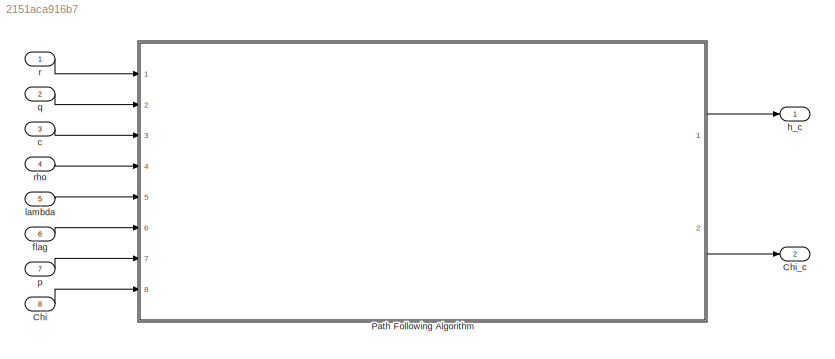
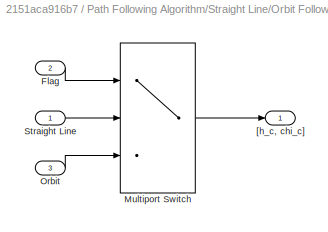
MODEL slx_2151aca916b7
KIND model
CONFIG AbsTol = auto
CONFIG EnableMultiTasking = off
CONFIG FixedStep = auto
CONFIG MaxStep = auto
CONFIG MinStep = auto
CONFIG RelTol = 1e-3
CONFIG SampleTimeConstraint = Unconstrained
CONFIG Solver = VariableStepAuto
CONFIG SolverName = VariableStepAuto
CONFIG StartTime = 0.0
CONFIG StopTime = 10.0
BLOCK [Inport] Chi
  IconDisplay = Port number
  Port = 8
BLOCK [Outport] Chi_c
  IconDisplay = Port number
  Port = 2
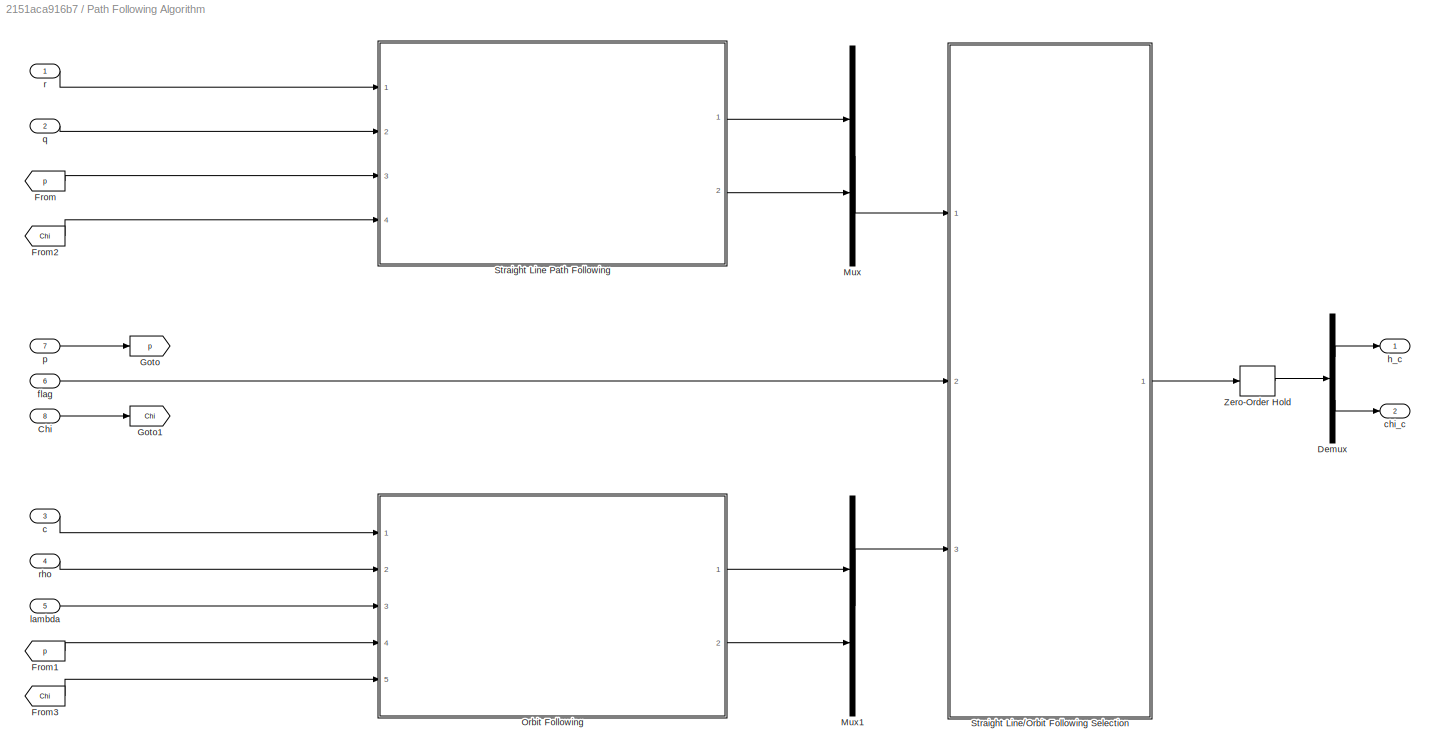
BLOCK [SubSystem] Path Following Algorithm
  Ports = [8, 2]
  RequestExecContextInheritance = off
BLOCK [Inport] Path Following Algorithm/Chi
  IconDisplay = Port number
  Port = 8
BLOCK [Demux] Path Following Algorithm/Demux
  DisplayOption = bar
  Outputs = 2
  Ports = [1, 2]
BLOCK [From] Path Following Algorithm/From
  GotoTag = p
BLOCK [From] Path Following Algorithm/From1
  GotoTag = p
BLOCK [From] Path Following Algorithm/From2
  GotoTag = Chi
BLOCK [From] Path Following Algorithm/From3
  GotoTag = Chi
BLOCK [Goto] Path Following Algorithm/Goto
  GotoTag = p
BLOCK [Goto] Path Following Algorithm/Goto1
  GotoTag = Chi
BLOCK [Mux] Path Following Algorithm/Mux
  DisplayOption = bar
  Inputs = 2
  Ports = [2, 1]
BLOCK [Mux] Path Following Algorithm/Mux1
  DisplayOption = bar
  Inputs = 2
  Ports = [2, 1]
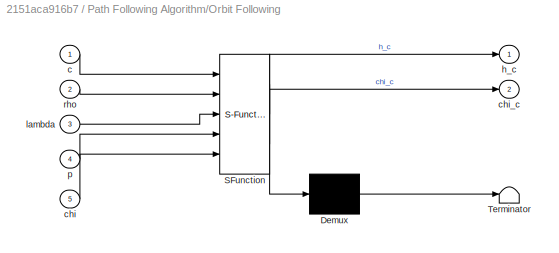
BLOCK [SubSystem] Path Following Algorithm/Orbit Following
  ErrorFcn = Stateflow.Translate.translate
  PermitHierarchicalResolution = ExplicitOnly
  Ports = [5, 2]
  RequestExecContextInheritance = off
  SFBlockType = MATLAB Function
  TreatAsAtomicUnit = on
BLOCK [Demux] Path Following Algorithm/Orbit Following/ Demux 
  Outputs = 1
  Ports = [1, 1]
BLOCK [S-Function] Path Following Algorithm/Orbit Following/ SFunction 
  EnableBusSupport = on
  FunctionName = sf_sfun
  Parameters = korbit
  PortCounts = [5 3]
  Ports = [5, 3]
  SFcnIsStateOwnerBlock = off
  SFunctionDeploymentMode = off
  Tag = Stateflow S-Function PathFollowing 1
BLOCK [Terminator] Path Following Algorithm/Orbit Following/ Terminator 
BLOCK [Inport] Path Following Algorithm/Orbit Following/c
  IconDisplay = Port number
BLOCK [Inport] Path Following Algorithm/Orbit Following/chi
  IconDisplay = Port number
  Port = 5
BLOCK [Outport] Path Following Algorithm/Orbit Following/chi_c
  IconDisplay = Port number
  Port = 2
BLOCK [Outport] Path Following Algorithm/Orbit Following/h_c
  IconDisplay = Port number
BLOCK [Inport] Path Following Algorithm/Orbit Following/lambda
  IconDisplay = Port number
  Port = 3
BLOCK [Inport] Path Following Algorithm/Orbit Following/p
  IconDisplay = Port number
  Port = 4
BLOCK [Inport] Path Following Algorithm/Orbit Following/rho
  IconDisplay = Port number
  Port = 2
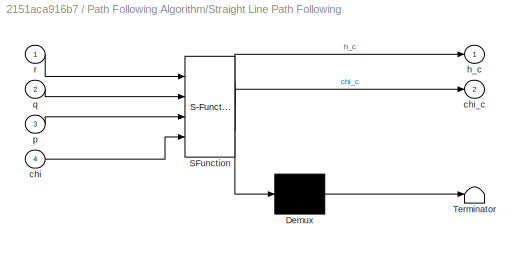
BLOCK [SubSystem] Path Following Algorithm/Straight Line Path Following
  ErrorFcn = Stateflow.Translate.translate
  PermitHierarchicalResolution = ExplicitOnly
  Ports = [4, 2]
  RequestExecContextInheritance = off
  SFBlockType = MATLAB Function
  TreatAsAtomicUnit = on
BLOCK [Demux] Path Following Algorithm/Straight Line Path Following/ Demux 
  Outputs = 1
  Ports = [1, 1]
BLOCK [S-Function] Path Following Algorithm/Straight Line Path Following/ SFunction 
  EnableBusSupport = on
  FunctionName = sf_sfun
  Parameters = chi_inf,kpath
  PortCounts = [4 3]
  Ports = [4, 3]
  SFcnIsStateOwnerBlock = off
  SFunctionDeploymentMode = off
  Tag = Stateflow S-Function PathFollowing 2
BLOCK [Terminator] Path Following Algorithm/Straight Line Path Following/ Terminator 
BLOCK [Inport] Path Following Algorithm/Straight Line Path Following/chi
  IconDisplay = Port number
  Port = 4
BLOCK [Outport] Path Following Algorithm/Straight Line Path Following/chi_c
  IconDisplay = Port number
  Port = 2
BLOCK [Outport] Path Following Algorithm/Straight Line Path Following/h_c
  IconDisplay = Port number
BLOCK [Inport] Path Following Algorithm/Straight Line Path Following/p
  IconDisplay = Port number
  Port = 3
BLOCK [Inport] Path Following Algorithm/Straight Line Path Following/q
  IconDisplay = Port number
  Port = 2
BLOCK [Inport] Path Following Algorithm/Straight Line Path Following/r
  IconDisplay = Port number
BLOCK [SubSystem] Path Following Algorithm/Straight Line//Orbit Following Selection
  Ports = [3, 1]
  RequestExecContextInheritance = off
BLOCK [Inport] Path Following Algorithm/Straight Line//Orbit Following Selection/Flag
  IconDisplay = Port number
  Port = 2
BLOCK [MultiPortSwitch] Path Following Algorithm/Straight Line//Orbit Following Selection/Multiport Switch
  DiagnosticForDefault = Warning
  InputSameDT = off
  Inputs = 2
  Ports = [3, 1]
  SaturateOnIntegerOverflow = off
BLOCK [Inport] Path Following Algorithm/Straight Line//Orbit Following Selection/Orbit
  IconDisplay = Port number
  Port = 3
BLOCK [Inport] Path Following Algorithm/Straight Line//Orbit Following Selection/Straight Line
  IconDisplay = Port number
BLOCK [Outport] Path Following Algorithm/Straight Line//Orbit Following Selection/[h_c, chi_c]
  IconDisplay = Port number
BLOCK [ZeroOrderHold] Path Following Algorithm/Zero-Order Hold
  SampleTime = SampleTime
BLOCK [Inport] Path Following Algorithm/c
  IconDisplay = Port number
  Port = 3
BLOCK [Outport] Path Following Algorithm/chi_c
  IconDisplay = Port number
  Port = 2
BLOCK [Inport] Path Following Algorithm/flag
  IconDisplay = Port number
  Port = 6
BLOCK [Outport] Path Following Algorithm/h_c
  IconDisplay = Port number
BLOCK [Inport] Path Following Algorithm/lambda
  IconDisplay = Port number
  Port = 5
BLOCK [Inport] Path Following Algorithm/p
  IconDisplay = Port number
  Port = 7
BLOCK [Inport] Path Following Algorithm/q
  IconDisplay = Port number
  Port = 2
BLOCK [Inport] Path Following Algorithm/r
  IconDisplay = Port number
BLOCK [Inport] Path Following Algorithm/rho
  IconDisplay = Port number
  Port = 4
BLOCK [Inport] c
  IconDisplay = Port number
  Port = 3
BLOCK [Inport] flag
  IconDisplay = Port number
  Port = 6
BLOCK [Outport] h_c
  IconDisplay = Port number
BLOCK [Inport] lambda
  IconDisplay = Port number
  Port = 5
BLOCK [Inport] p
  IconDisplay = Port number
  Port = 7
BLOCK [Inport] q
  IconDisplay = Port number
  Port = 2
BLOCK [Inport] r
  IconDisplay = Port number
BLOCK [Inport] rho
  IconDisplay = Port number
  Port = 4
LINE Chi:1 -> Path Following Algorithm:8
LINE Path Following Algorithm/Chi:1 -> Path Following Algorithm/Goto1:1
LINE Path Following Algorithm/Demux:1 -> Path Following Algorithm/h_c:1
LINE Path Following Algorithm/Demux:2 -> Path Following Algorithm/chi_c:1
LINE Path Following Algorithm/From1:1 -> Path Following Algorithm/Orbit Following:4
LINE Path Following Algorithm/From2:1 -> Path Following Algorithm/Straight Line Path Following:4
LINE Path Following Algorithm/From3:1 -> Path Following Algorithm/Orbit Following:5
LINE Path Following Algorithm/From:1 -> Path Following Algorithm/Straight Line Path Following:3
LINE Path Following Algorithm/Mux1:1 -> Path Following Algorithm/Straight Line//Orbit Following Selection:3
LINE Path Following Algorithm/Mux:1 -> Path Following Algorithm/Straight Line//Orbit Following Selection:1
LINE Path Following Algorithm/Orbit Following:1 -> Path Following Algorithm/Mux1:1
LINE Path Following Algorithm/Orbit Following:2 -> Path Following Algorithm/Mux1:2
LINE Path Following Algorithm/Straight Line Path Following:1 -> Path Following Algorithm/Mux:1
LINE Path Following Algorithm/Straight Line Path Following:2 -> Path Following Algorithm/Mux:2
LINE Path Following Algorithm/Straight Line//Orbit Following Selection/Flag:1 -> Path Following Algorithm/Straight Line//Orbit Following Selection/Multiport Switch:1
LINE Path Following Algorithm/Straight Line//Orbit Following Selection/Multiport Switch:1 -> Path Following Algorithm/Straight Line//Orbit Following Selection/[h_c, chi_c]:1
LINE Path Following Algorithm/Straight Line//Orbit Following Selection/Orbit:1 -> Path Following Algorithm/Straight Line//Orbit Following Selection/Multiport Switch:3
LINE Path Following Algorithm/Straight Line//Orbit Following Selection/Straight Line:1 -> Path Following Algorithm/Straight Line//Orbit Following Selection/Multiport Switch:2
LINE Path Following Algorithm/Straight Line//Orbit Following Selection:1 -> Path Following Algorithm/Zero-Order Hold:1
LINE Path Following Algorithm/Zero-Order Hold:1 -> Path Following Algorithm/Demux:1
LINE Path Following Algorithm/c:1 -> Path Following Algorithm/Orbit Following:1
LINE Path Following Algorithm/flag:1 -> Path Following Algorithm/Straight Line//Orbit Following Selection:2
LINE Path Following Algorithm/lambda:1 -> Path Following Algorithm/Orbit Following:3
LINE Path Following Algorithm/p:1 -> Path Following Algorithm/Goto:1
LINE Path Following Algorithm/q:1 -> Path Following Algorithm/Straight Line Path Following:2
LINE Path Following Algorithm/r:1 -> Path Following Algorithm/Straight Line Path Following:1
LINE Path Following Algorithm/rho:1 -> Path Following Algorithm/Orbit Following:2
LINE Path Following Algorithm:1 -> h_c:1
LINE Path Following Algorithm:2 -> Chi_c:1
LINE c:1 -> Path Following Algorithm:3
LINE flag:1 -> Path Following Algorithm:6
LINE lambda:1 -> Path Following Algorithm:5
LINE p:1 -> Path Following Algorithm:7
LINE q:1 -> Path Following Algorithm:2
LINE r:1 -> Path Following Algorithm:1
LINE rho:1 -> Path Following Algorithm:4
CHART Path Following Algorithm/Orbit Following states=1 transitions=1
  STATE_LABEL 'eML_blk_kernel()'
  STATE_LABEL 'SCRIPT:\nfunction [h_c, chi_c] = fcn(c, rho, lambda, p, chi, korbit)\n\n    [h_c, chi_c] = orbitFollowing(c, rho, lambda, p, chi, korbit);\n\nend\n'
CHART Path Following Algorithm/Straight Line Path Following states=1 transitions=1
  STATE_LABEL 'eML_blk_kernel()'
  STATE_LABEL 'SCRIPT:\nfunction [h_c, chi_c] = fcn(r, q, p, chi, chi_inf, kpath)\n\n    [h_c, chi_c] = straightLineFollowing(r, q, p, chi, chi_inf, kpath);\n\nend\n'
